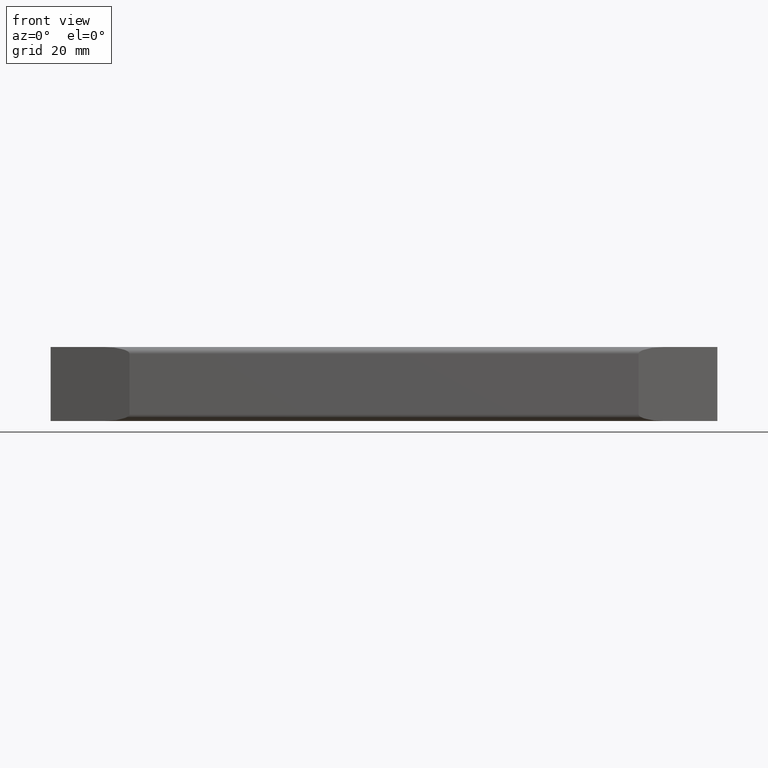
[diagram: clean part render]
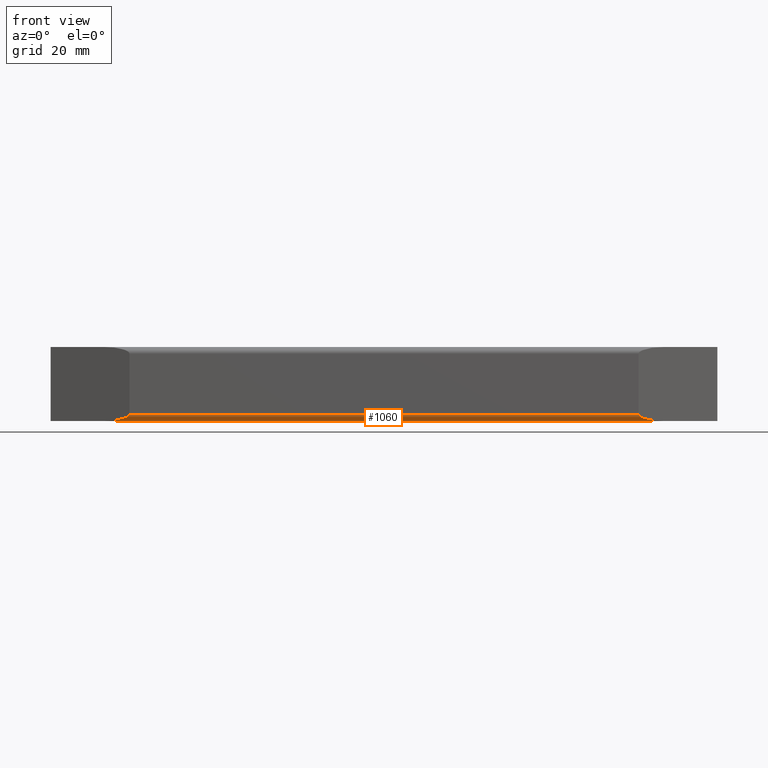
[diagram: same view with one face highlighted and labeled with its STEP entity id]
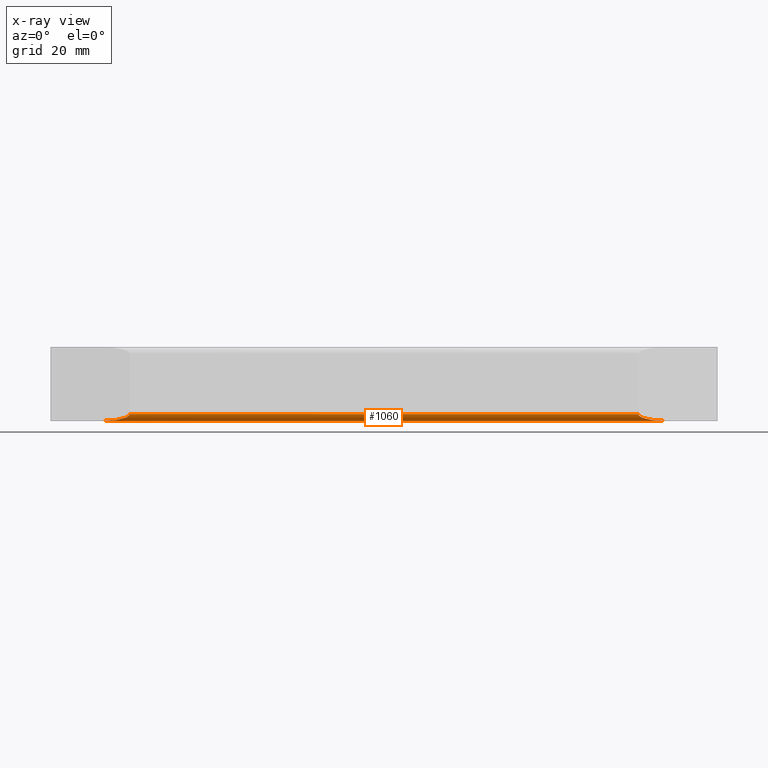
[diagram: x-ray of the same camera — body ghosted, the highlighted face saturated]
A machine part, front view. The second image highlights one B-rep face of the part: STEP entity #1060.
The next image is the same camera in x-ray: the body ghosted, the highlighted face saturated — about 0% of this face is hidden behind the body in this view.
In plain terms, the highlighted cylindrical surface (edge-blend (fillet) strip) has radius 2.3813 mm, axis along (1, 0, -0).
Its self-contained STEP definition (entity closure, byte-faithful):
#1 = CARTESIAN_POINT ( 'NONE',  ( -8.285738146544257900, -1.943885886817825300, -0.5000000000000000000 ) ) ;
#140 = VECTOR ( 'NONE', #597, 39.37007874015748100 ) ;
#150 = LINE ( 'NONE', #567, #140 ) ;
#186 = ORIENTED_EDGE ( 'NONE', *, *, #517, .F. ) ;
#196 = CYLINDRICAL_SURFACE ( 'NONE', #1008, 0.09375000000000005600 ) ;
#267 = ORIENTED_EDGE ( 'NONE', *, *, #552, .F. ) ;
#328 = VERTEX_POINT ( 'NONE', #1 ) ;
#348 = EDGE_LOOP ( 'NONE', ( #1089, #267, #186, #466 ) ) ;
#427 = CARTESIAN_POINT ( 'NONE',  ( -1.061754545193816200, -2.036996272944757700, -0.4617494344567626400 ) ) ;
#429 = CARTESIAN_POINT ( 'NONE',  ( -1.064117920182349400, -2.037629537364351200, -0.4073410922112734600 ) ) ;
#434 = CARTESIAN_POINT ( 'NONE',  ( -9.000000000000001800, -1.943885886817825300, -0.4062500000000000000 ) ) ;
#440 = CARTESIAN_POINT ( 'NONE',  ( -0.9173303043907997700, -1.998297914254111500, -0.4999999999999998900 ) ) ;
#444 =( BOUNDED_CURVE ( )  B_SPLINE_CURVE ( 3, ( #429, #427, #440, #446 ),
 .UNSPECIFIED., .F., .T. ) 
 B_SPLINE_CURVE_WITH_KNOTS ( ( 4, 4 ),
 ( 3.153231233261878200, 4.712388980384688800 ),
 .UNSPECIFIED. ) 
 CURVE ( )  GEOMETRIC_REPRESENTATION_ITEM ( )  RATIONAL_B_SPLINE_CURVE ( ( 1.000000000000000000, 0.8074730963475383900, 0.8074730963475383900, 1.000000000000000000 ) ) 
 REPRESENTATION_ITEM ( '' )  );
#446 = CARTESIAN_POINT ( 'NONE',  ( -0.7142618534557397800, -1.943885886817823000, -0.5000000000000000000 ) ) ;
#450 = DIRECTION ( 'NONE',  ( 1.000000000000000000, 2.538966122798555600E-016, -0.0000000000000000000 ) ) ;
#466 = ORIENTED_EDGE ( 'NONE', *, *, #1033, .F. ) ;
#517 = EDGE_CURVE ( 'NONE', #900, #1037, #444, .T. ) ;
#529 = CARTESIAN_POINT ( 'NONE',  ( -8.082669695609212100, -1.998297914254110200, -0.5000000000000000000 ) ) ;
#533 = CARTESIAN_POINT ( 'NONE',  ( -1.064117920182349400, -2.037629537364351200, -0.4073410922112734600 ) ) ;
#536 = CARTESIAN_POINT ( 'NONE',  ( -8.285738146544257900, -1.943885886817825300, -0.5000000000000000000 ) ) ;
#547 = CARTESIAN_POINT ( 'NONE',  ( -7.938245454806200000, -2.036996272944755900, -0.4617494344567664700 ) ) ;
#548 = CARTESIAN_POINT ( 'NONE',  ( -7.935882079817655900, -2.037629537364355600, -0.4073410922112802300 ) ) ;
#550 = EDGE_CURVE ( 'NONE', #328, #909, #718, .T. ) ;
#552 = EDGE_CURVE ( 'NONE', #1037, #328, #622, .T. ) ;
#567 = CARTESIAN_POINT ( 'NONE',  ( -9.000000000000001800, -2.037629537364338300, -0.4073410922112801800 ) ) ;
#579 = CARTESIAN_POINT ( 'NONE',  ( -7.940364825815942500, -1.943885886817825000, -0.5000000000000000000 ) ) ;
#588 = DIRECTION ( 'NONE',  ( -1.000000000000000000, -2.538966122798555600E-016, 0.0000000000000000000 ) ) ;
#597 = DIRECTION ( 'NONE',  ( 1.000000000000000000, 2.538966122798555600E-016, -0.0000000000000000000 ) ) ;
#622 = LINE ( 'NONE', #579, #632 ) ;
#625 = CARTESIAN_POINT ( 'NONE',  ( -7.935882079817655900, -2.037629537364355600, -0.4073410922112802300 ) ) ;
#632 = VECTOR ( 'NONE', #588, 39.37007874015748100 ) ;
#644 = FACE_OUTER_BOUND ( 'NONE', #348, .T. ) ;
#718 =( BOUNDED_CURVE ( )  B_SPLINE_CURVE ( 3, ( #536, #529, #547, #548 ),
 .UNSPECIFIED., .F., .T. ) 
 B_SPLINE_CURVE_WITH_KNOTS ( ( 4, 4 ),
 ( 4.712388980384689700, 6.271546727507428400 ),
 .UNSPECIFIED. ) 
 CURVE ( )  GEOMETRIC_REPRESENTATION_ITEM ( )  RATIONAL_B_SPLINE_CURVE ( ( 1.000000000000000000, 0.8074730963475552600, 0.8074730963475552600, 1.000000000000000000 ) ) 
 REPRESENTATION_ITEM ( '' )  );
#900 = VERTEX_POINT ( 'NONE', #533 ) ;
#909 = VERTEX_POINT ( 'NONE', #625 ) ;
#1008 = AXIS2_PLACEMENT_3D ( 'NONE', #434, #450, #1067 ) ;
#1033 = EDGE_CURVE ( 'NONE', #909, #900, #150, .T. ) ;
#1037 = VERTEX_POINT ( 'NONE', #1082 ) ;
#1060 = ADVANCED_FACE ( 'NONE', ( #644 ), #196, .T. ) ;
#1067 = DIRECTION ( 'NONE',  ( 0.0000000000000000000, 1.000000000000000000, 0.0000000000000000000 ) ) ;
#1082 = CARTESIAN_POINT ( 'NONE',  ( -0.7142618534557397800, -1.943885886817823000, -0.5000000000000000000 ) ) ;
#1089 = ORIENTED_EDGE ( 'NONE', *, *, #550, .F. ) ;